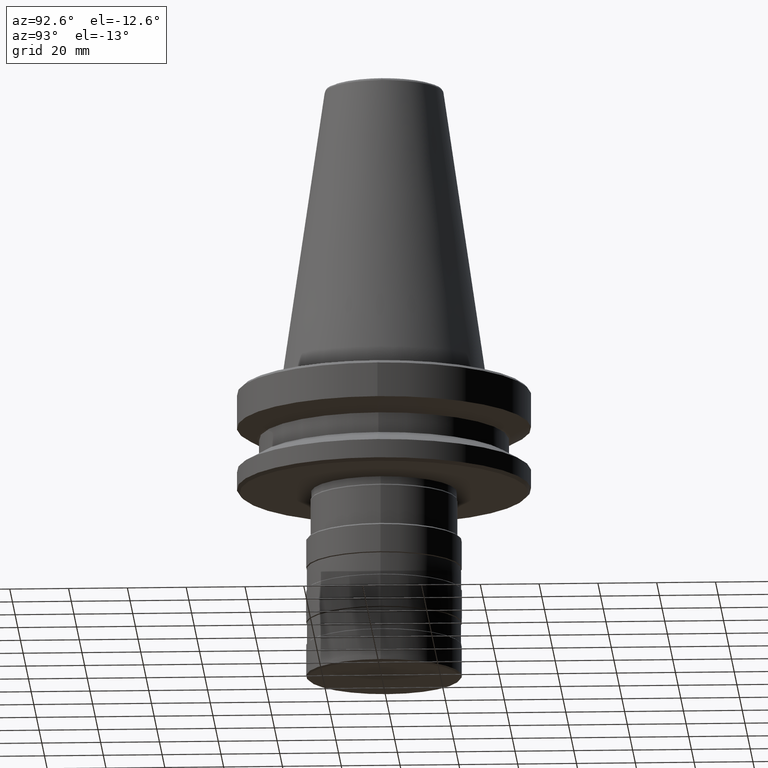
[diagram: clean part render]
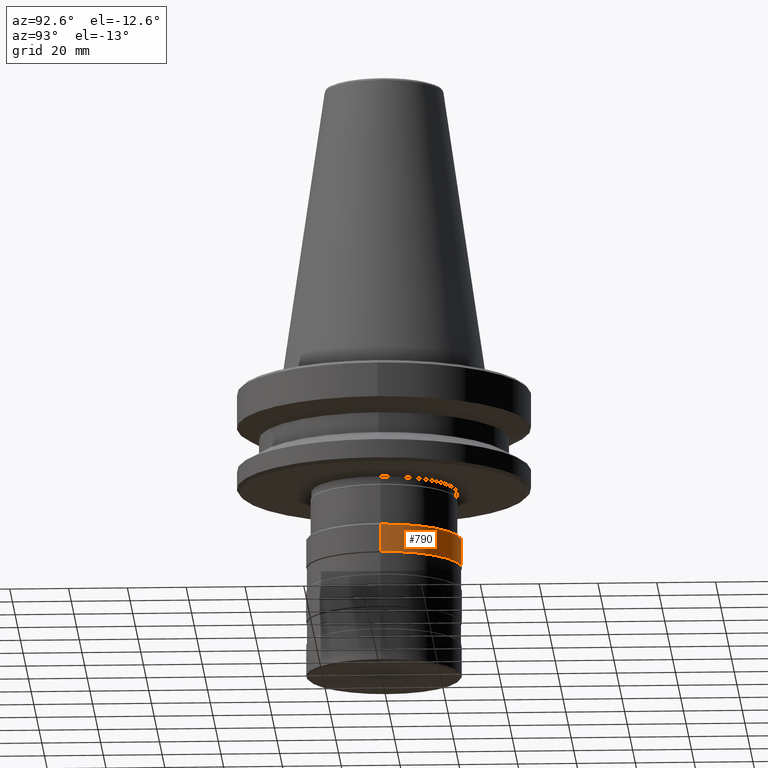
[diagram: same view with one face highlighted and labeled with its STEP entity id]
A machine part, auxiliary view. The second image highlights one B-rep face of the part: STEP entity #790.
In plain terms, the highlighted cylindrical surface (partial cylindrical patch) has radius 26.5 mm, axis along (0, 0, 1).
Its self-contained STEP definition (entity closure, byte-faithful):
#75 = ORIENTED_EDGE ( 'NONE', *, *, #384, .F. ) ;
#97 = LINE ( 'NONE', #1516, #1158 ) ;
#248 = DIRECTION ( 'NONE',  ( 0.0000000000000000000, 0.0000000000000000000, 1.000000000000000000 ) ) ;
#251 = CARTESIAN_POINT ( 'NONE',  ( 0.0000000000000000000, 0.0000000000000000000, -64.50000000000000000 ) ) ;
#253 = DIRECTION ( 'NONE',  ( 1.000000000000000000, 0.0000000000000000000, 0.0000000000000000000 ) ) ;
#305 = VECTOR ( 'NONE', #334, 1000.000000000000000 ) ;
#334 = DIRECTION ( 'NONE',  ( 0.0000000000000000000, 0.0000000000000000000, 1.000000000000000000 ) ) ;
#347 = CARTESIAN_POINT ( 'NONE',  ( 26.50000000000000000, 0.0000000000000000000, -64.50000000000000000 ) ) ;
#350 = CIRCLE ( 'NONE', #1680, 26.50000000000000400 ) ;
#351 = CARTESIAN_POINT ( 'NONE',  ( 26.50000000000000700, -1.203706215242022400E-032, -54.99999999999999300 ) ) ;
#359 = ORIENTED_EDGE ( 'NONE', *, *, #1174, .T. ) ;
#384 = EDGE_CURVE ( 'NONE', #592, #1763, #350, .T. ) ;
#558 = ORIENTED_EDGE ( 'NONE', *, *, #1948, .T. ) ;
#586 = DIRECTION ( 'NONE',  ( 0.0000000000000000000, 1.000000000000000000, 0.0000000000000000000 ) ) ;
#588 = DIRECTION ( 'NONE',  ( -0.0000000000000000000, -1.334402673828313100E-016, 1.000000000000000000 ) ) ;
#590 = CARTESIAN_POINT ( 'NONE',  ( 0.0000000000000000000, 6.672013369141465600E-017, -54.99999999999999300 ) ) ;
#592 = VERTEX_POINT ( 'NONE', #351 ) ;
#611 = CIRCLE ( 'NONE', #1639, 26.50000000000000000 ) ;
#623 = EDGE_CURVE ( 'NONE', #1327, #592, #1497, .T. ) ;
#729 = DIRECTION ( 'NONE',  ( 0.0000000000000000000, 0.0000000000000000000, 1.000000000000000000 ) ) ;
#790 = ADVANCED_FACE ( 'NONE', ( #910 ), #1316, .T. ) ;
#891 = DIRECTION ( 'NONE',  ( 1.000000000000000000, 0.0000000000000000000, 0.0000000000000000000 ) ) ;
#896 = DIRECTION ( 'NONE',  ( 0.0000000000000000000, 0.0000000000000000000, 1.000000000000000000 ) ) ;
#898 = CARTESIAN_POINT ( 'NONE',  ( 0.0000000000000000000, 0.0000000000000000000, -64.50000000000000000 ) ) ;
#910 = FACE_OUTER_BOUND ( 'NONE', #1140, .T. ) ;
#1016 = CARTESIAN_POINT ( 'NONE',  ( -26.50000000000000000, 3.245314017740485800E-015, -64.50000000000000000 ) ) ;
#1039 = CARTESIAN_POINT ( 'NONE',  ( -26.50000000000000700, 3.245314017740486600E-015, -54.99999999999999300 ) ) ;
#1140 = EDGE_LOOP ( 'NONE', ( #558, #359, #75, #1287 ) ) ;
#1158 = VECTOR ( 'NONE', #729, 1000.000000000000000 ) ;
#1174 = EDGE_CURVE ( 'NONE', #1791, #1763, #97, .T. ) ;
#1287 = ORIENTED_EDGE ( 'NONE', *, *, #623, .F. ) ;
#1316 = CYLINDRICAL_SURFACE ( 'NONE', #1921, 26.50000000000000000 ) ;
#1327 = VERTEX_POINT ( 'NONE', #2059 ) ;
#1497 = LINE ( 'NONE', #347, #305 ) ;
#1516 = CARTESIAN_POINT ( 'NONE',  ( -26.50000000000000000, 3.245314017740485800E-015, -64.50000000000000000 ) ) ;
#1639 = AXIS2_PLACEMENT_3D ( 'NONE', #898, #896, #891 ) ;
#1680 = AXIS2_PLACEMENT_3D ( 'NONE', #590, #588, #586 ) ;
#1763 = VERTEX_POINT ( 'NONE', #1039 ) ;
#1791 = VERTEX_POINT ( 'NONE', #1016 ) ;
#1921 = AXIS2_PLACEMENT_3D ( 'NONE', #251, #248, #253 ) ;
#1948 = EDGE_CURVE ( 'NONE', #1327, #1791, #611, .T. ) ;
#2059 = CARTESIAN_POINT ( 'NONE',  ( 26.50000000000000000, 0.0000000000000000000, -64.50000000000000000 ) ) ;